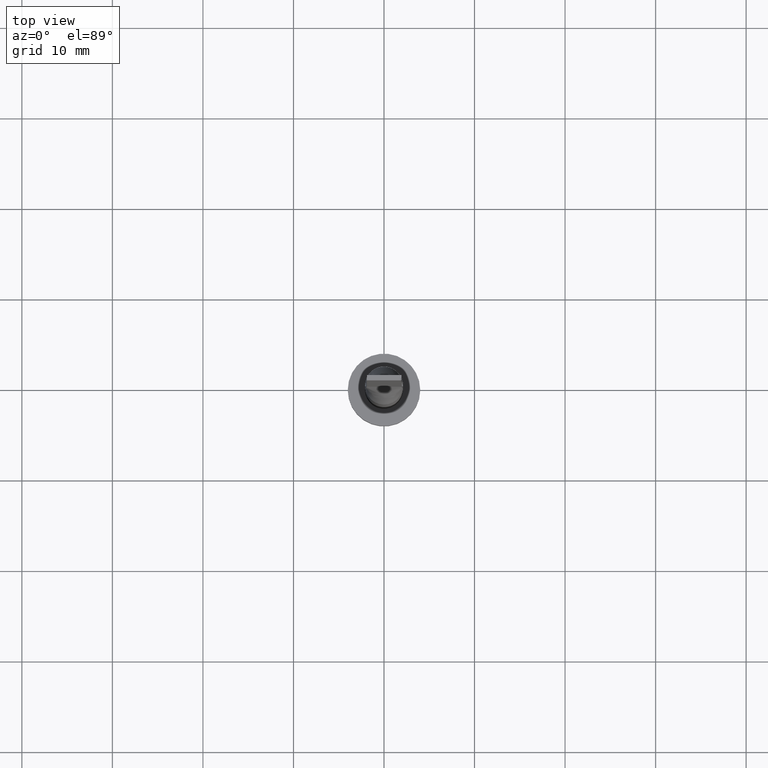
[diagram: clean part render]
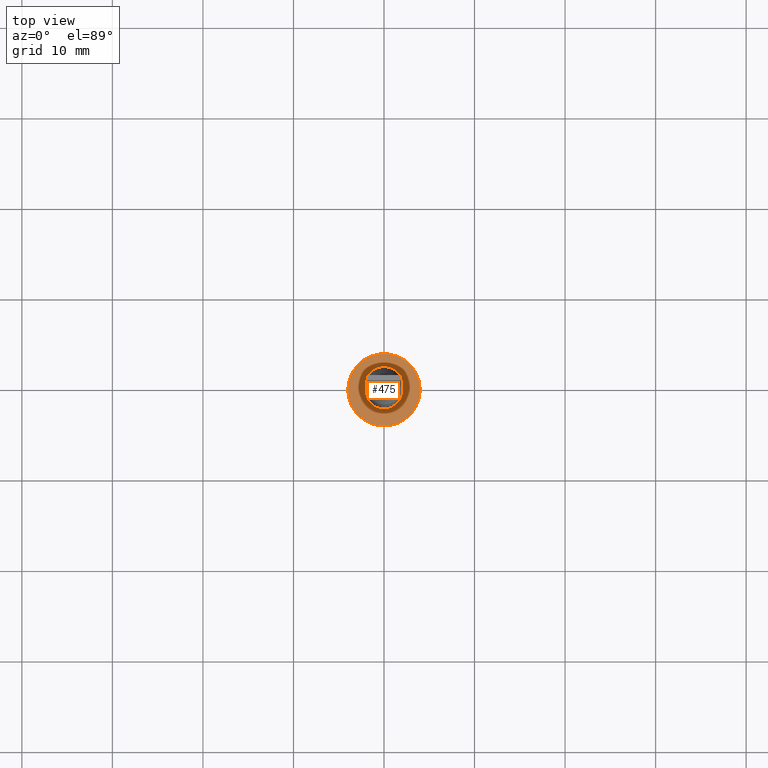
[diagram: same view with one face highlighted and labeled with its STEP entity id]
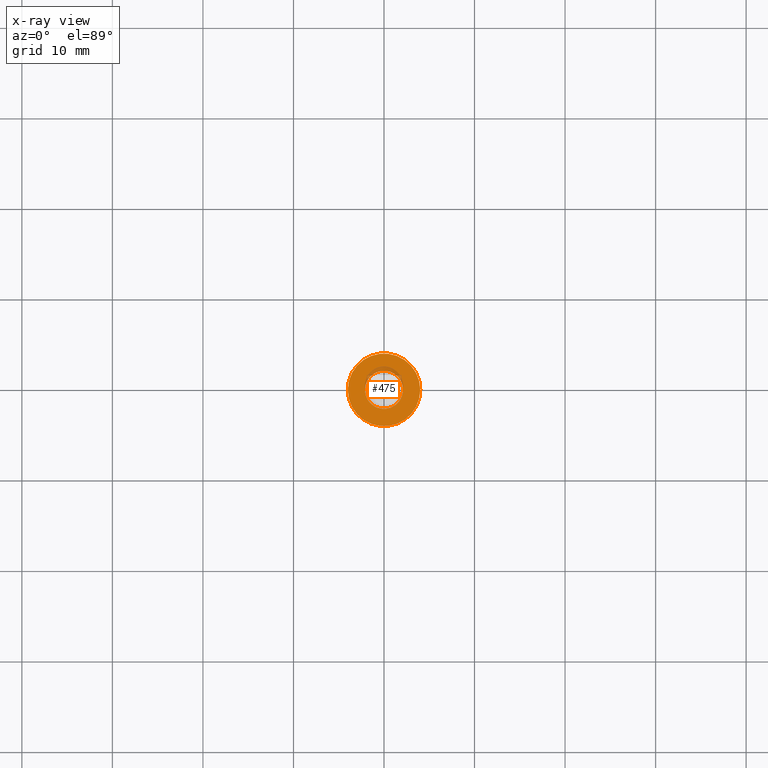
[diagram: x-ray of the same camera — body ghosted, the highlighted face saturated]
A machine part, top view. The second image highlights one B-rep face of the part: STEP entity #475.
The next image is the same camera in x-ray: the body ghosted, the highlighted face saturated — about 6% of this face is hidden behind the body in this view.
In plain terms, the highlighted planar face has unit normal (0, 0, 1).
Its self-contained STEP definition (entity closure, byte-faithful):
#35 = VERTEX_POINT ( 'NONE', #577 ) ;
#67 = DIRECTION ( 'NONE',  ( 0.000000000000000000, 0.000000000000000000, 1.000000000000000000 ) ) ;
#82 = EDGE_LOOP ( 'NONE', ( #126, #265 ) ) ;
#94 = DIRECTION ( 'NONE',  ( 1.000000000000000000, 0.000000000000000000, 0.000000000000000000 ) ) ;
#101 = EDGE_CURVE ( 'NONE', #35, #205, #346, .T. ) ;
#106 = CIRCLE ( 'NONE', #302, 4.000000000000000000 ) ;
#112 = DIRECTION ( 'NONE',  ( 1.000000000000000000, 0.000000000000000000, 0.000000000000000000 ) ) ;
#114 = CIRCLE ( 'NONE', #423, 2.100000000000000089 ) ;
#126 = ORIENTED_EDGE ( 'NONE', *, *, #101, .F. ) ;
#133 = VERTEX_POINT ( 'NONE', #405 ) ;
#137 = PLANE ( 'NONE',  #244 ) ;
#153 = CARTESIAN_POINT ( 'NONE',  ( 2.100000000000000089, 2.571758278209441957E-16, 3.000000000000000000 ) ) ;
#154 = DIRECTION ( 'NONE',  ( 1.000000000000000000, 0.000000000000000000, 0.000000000000000000 ) ) ;
#195 = CARTESIAN_POINT ( 'NONE',  ( 0.000000000000000000, 0.000000000000000000, 3.000000000000000000 ) ) ;
#198 = AXIS2_PLACEMENT_3D ( 'NONE', #503, #332, #154 ) ;
#205 = VERTEX_POINT ( 'NONE', #153 ) ;
#213 = CIRCLE ( 'NONE', #198, 4.000000000000000000 ) ;
#230 = FACE_BOUND ( 'NONE', #82, .T. ) ;
#244 = AXIS2_PLACEMENT_3D ( 'NONE', #553, #317, #409 ) ;
#265 = ORIENTED_EDGE ( 'NONE', *, *, #371, .F. ) ;
#275 = DIRECTION ( 'NONE',  ( 1.000000000000000000, 0.000000000000000000, 0.000000000000000000 ) ) ;
#300 = AXIS2_PLACEMENT_3D ( 'NONE', #540, #580, #94 ) ;
#302 = AXIS2_PLACEMENT_3D ( 'NONE', #514, #520, #112 ) ;
#317 = DIRECTION ( 'NONE',  ( 0.000000000000000000, 0.000000000000000000, 1.000000000000000000 ) ) ;
#332 = DIRECTION ( 'NONE',  ( 0.000000000000000000, 0.000000000000000000, 1.000000000000000000 ) ) ;
#338 = ORIENTED_EDGE ( 'NONE', *, *, #360, .T. ) ;
#346 = CIRCLE ( 'NONE', #300, 2.100000000000000089 ) ;
#360 = EDGE_CURVE ( 'NONE', #133, #538, #213, .T. ) ;
#371 = EDGE_CURVE ( 'NONE', #205, #35, #114, .T. ) ;
#373 = FACE_OUTER_BOUND ( 'NONE', #568, .T. ) ;
#405 = CARTESIAN_POINT ( 'NONE',  ( -4.000000000000000000, 0.000000000000000000, 3.000000000000000000 ) ) ;
#409 = DIRECTION ( 'NONE',  ( 1.000000000000000000, 0.000000000000000000, -0.000000000000000000 ) ) ;
#421 = CARTESIAN_POINT ( 'NONE',  ( 4.000000000000000000, 4.898587196589412829E-16, 3.000000000000000000 ) ) ;
#423 = AXIS2_PLACEMENT_3D ( 'NONE', #195, #67, #275 ) ;
#429 = ORIENTED_EDGE ( 'NONE', *, *, #562, .T. ) ;
#475 = ADVANCED_FACE ( 'NONE', ( #230, #373 ), #137, .T. ) ;
#503 = CARTESIAN_POINT ( 'NONE',  ( 0.000000000000000000, 0.000000000000000000, 3.000000000000000000 ) ) ;
#514 = CARTESIAN_POINT ( 'NONE',  ( 0.000000000000000000, 0.000000000000000000, 3.000000000000000000 ) ) ;
#520 = DIRECTION ( 'NONE',  ( 0.000000000000000000, 0.000000000000000000, 1.000000000000000000 ) ) ;
#538 = VERTEX_POINT ( 'NONE', #421 ) ;
#540 = CARTESIAN_POINT ( 'NONE',  ( 0.000000000000000000, 0.000000000000000000, 3.000000000000000000 ) ) ;
#553 = CARTESIAN_POINT ( 'NONE',  ( 0.000000000000000000, 0.000000000000000000, 3.000000000000000000 ) ) ;
#562 = EDGE_CURVE ( 'NONE', #538, #133, #106, .T. ) ;
#568 = EDGE_LOOP ( 'NONE', ( #338, #429 ) ) ;
#577 = CARTESIAN_POINT ( 'NONE',  ( -2.100000000000000089, 0.000000000000000000, 3.000000000000000000 ) ) ;
#580 = DIRECTION ( 'NONE',  ( 0.000000000000000000, 0.000000000000000000, 1.000000000000000000 ) ) ;